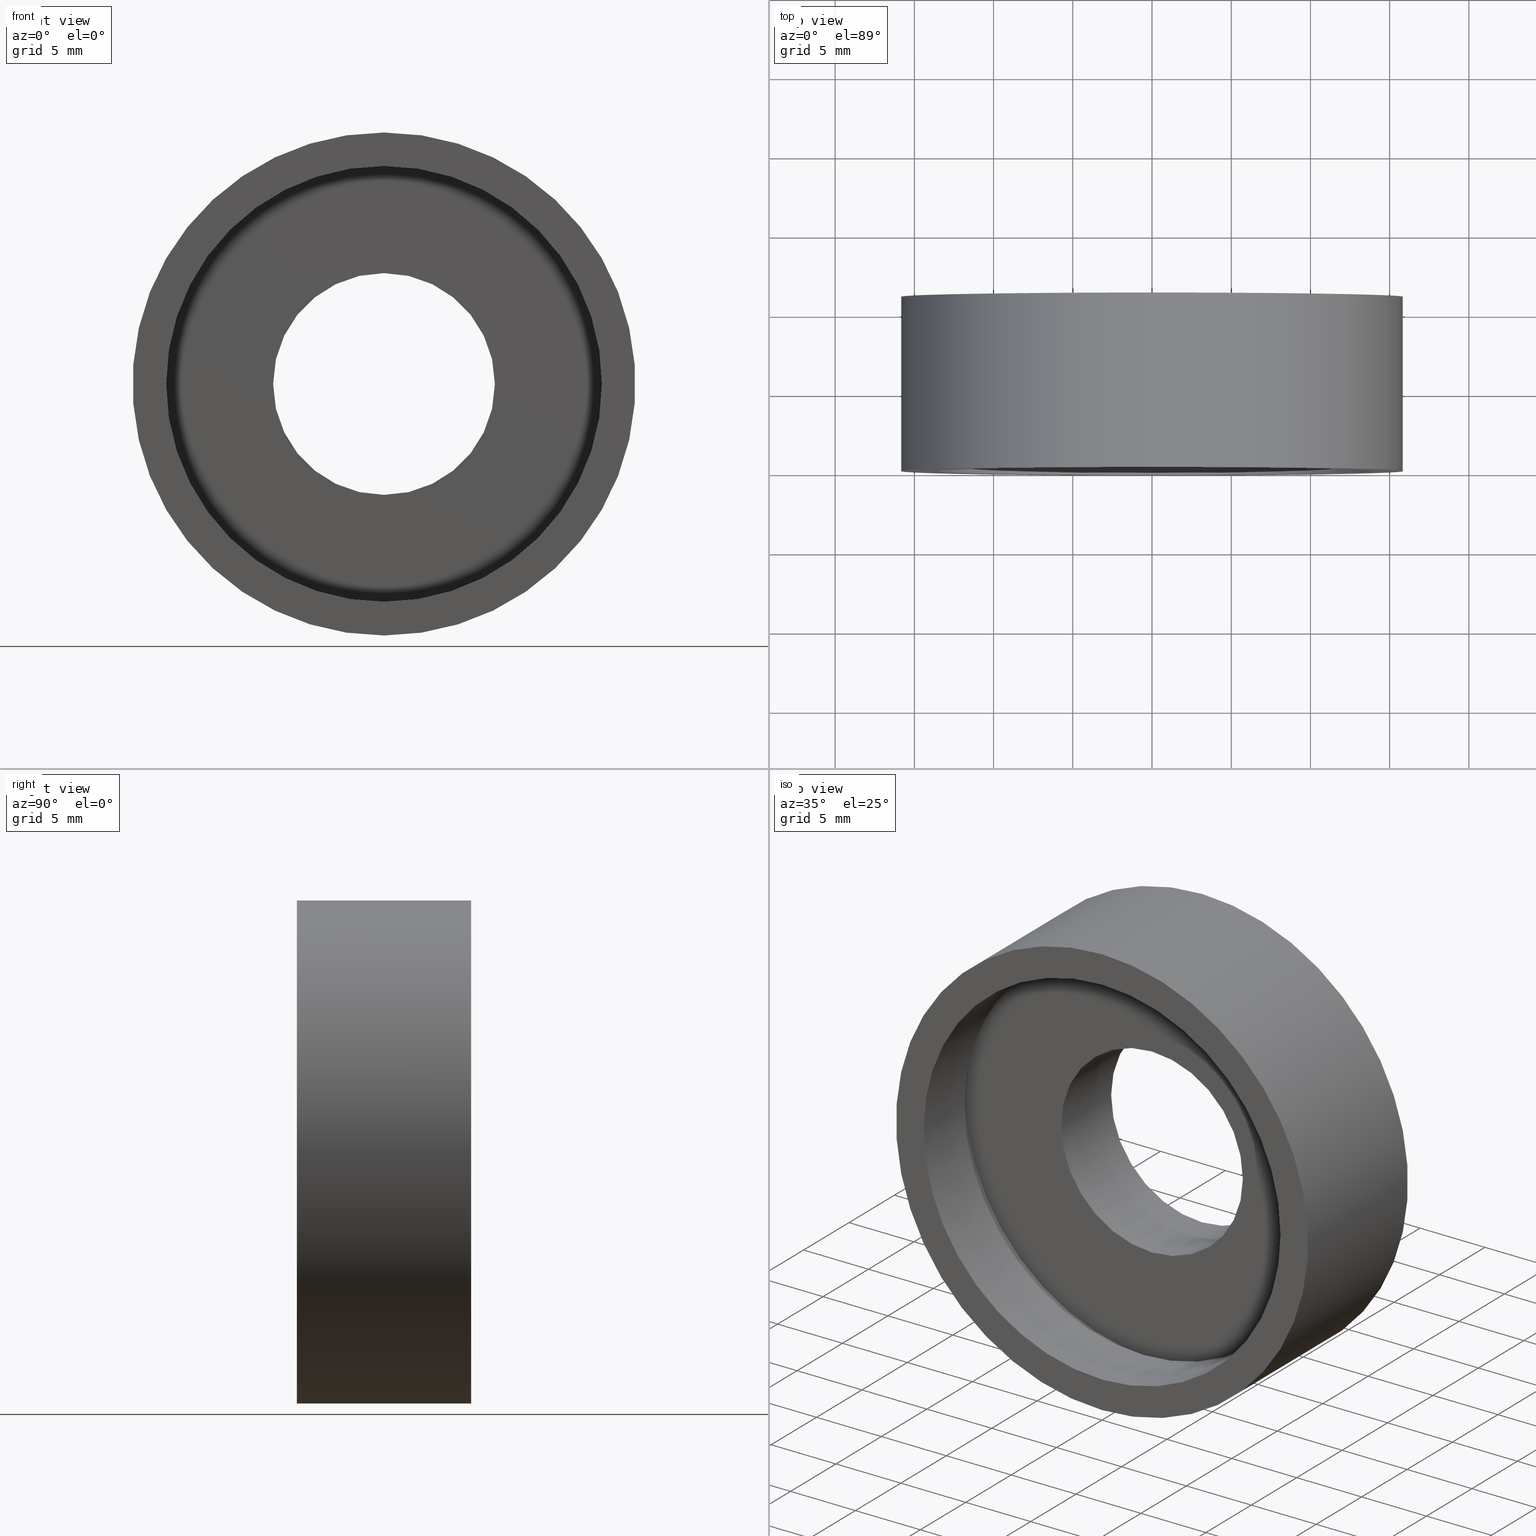
[diagram: canonical four-view strip — front | top / right | iso, engineering-drawing reading convention]
A machine part, canonical four-view strip (front | top / right | iso — engineering-drawing reading convention). The complete STEP part file that produces these views, byte-faithful:
ISO-10303-21;
HEADER;
FILE_DESCRIPTION (( 'STEP AP214' ),
    '1' );
FILE_NAME ('504073.STEP',
    '2019-10-09T07:57:28',
    ( 'user' ),
    ( '΢���й�' ),
    'SwSTEP 2.0',
    'SolidWorks 2016',
    '' );
FILE_SCHEMA (( 'AUTOMOTIVE_DESIGN' ));
ENDSEC;

DATA;
#1 = ADVANCED_BREP_SHAPE_REPRESENTATION ( '504073', ( #53, #227 ), #142 ) ;
#2 = EDGE_LOOP ( 'NONE', ( #32, #176, #52, #144 ) ) ;
#3 = VERTEX_POINT ( 'NONE', #223 ) ;
#4 = PRESENTATION_LAYER_ASSIGNMENT (  '', '', ( #158 ) ) ;
#5 = EDGE_LOOP ( 'NONE', ( #154, #112 ) ) ;
#6 = ORIENTED_EDGE ( 'NONE', *, *, #229, .T. ) ;
#7 = UNCERTAINTY_MEASURE_WITH_UNIT (LENGTH_MEASURE( 1.000000000000000100E-005 ), #228, 'distance_accuracy_value', 'NONE');
#8 = CARTESIAN_POINT ( 'NONE',  ( 0.0000000000000000000, 4.499999999999997300, 0.0000000000000000000 ) ) ;
#9 = PRESENTATION_LAYER_ASSIGNMENT (  '', '', ( #103 ) ) ;
#10 = SURFACE_STYLE_FILL_AREA ( #371 ) ;
#11 =( NAMED_UNIT ( * ) SI_UNIT ( $, .STERADIAN. ) SOLID_ANGLE_UNIT ( ) );
#12 = ORIENTED_EDGE ( 'NONE', *, *, #311, .T. ) ;
#13 = CIRCLE ( 'NONE', #319, 7.000000000000006200 ) ;
#14 = EDGE_CURVE ( 'NONE', #45, #85, #335, .T. ) ;
#15 = PRODUCT_DEFINITION_CONTEXT ( 'detailed design', #307, 'design' ) ;
#16 = CLOSED_SHELL ( 'NONE', ( #91, #170, #247, #369, #113, #390, #397, #352, #261, #312, #38, #159 ) ) ;
#17 = DIRECTION ( 'NONE',  ( 0.0000000000000000000, 0.0000000000000000000, 1.000000000000000000 ) ) ;
#18 = APPLICATION_CONTEXT ( 'automotive_design' ) ;
#19 = VERTEX_POINT ( 'NONE', #143 ) ;
#20 = CIRCLE ( 'NONE', #396, 13.75000000000000700 ) ;
#21 = ORIENTED_EDGE ( 'NONE', *, *, #245, .F. ) ;
#22 = CARTESIAN_POINT ( 'NONE',  ( 14.35000000000000500, 5.499999999999998200, 0.0000000000000000000 ) ) ;
#23 = PRODUCT_DEFINITION_SHAPE ( 'NONE', 'NONE',  #125 ) ;
#24 =( GEOMETRIC_REPRESENTATION_CONTEXT ( 3 ) GLOBAL_UNCERTAINTY_ASSIGNED_CONTEXT ( ( #388 ) ) GLOBAL_UNIT_ASSIGNED_CONTEXT ( ( #373, #285, #273 ) ) REPRESENTATION_CONTEXT ( 'NONE', 'WORKASPACE' ) );
#25 = VECTOR ( 'NONE', #190, 1000.000000000000000 ) ;
#26 = DIRECTION ( 'NONE',  ( 0.0000000000000000000, 0.0000000000000000000, 1.000000000000000000 ) ) ;
#27 = ORIENTED_EDGE ( 'NONE', *, *, #102, .T. ) ;
#28 = ORIENTED_EDGE ( 'NONE', *, *, #29, .F. ) ;
#29 = EDGE_CURVE ( 'NONE', #48, #165, #303, .T. ) ;
#30 = CARTESIAN_POINT ( 'NONE',  ( 1.683889348827611600E-015, 0.0000000000000000000, -13.75000000000000700 ) ) ;
#31 = PRESENTATION_STYLE_ASSIGNMENT (( #155 ) ) ;
#32 = ORIENTED_EDGE ( 'NONE', *, *, #304, .F. ) ;
#33 = CARTESIAN_POINT ( 'NONE',  ( 0.0000000000000000000, 5.499999999999998200, 0.0000000000000000000 ) ) ;
#34 = ORIENTED_EDGE ( 'NONE', *, *, #418, .F. ) ;
#35 = VERTEX_POINT ( 'NONE', #239 ) ;
#36 = EDGE_LOOP ( 'NONE', ( #248, #93, #419, #153 ) ) ;
#37 = MECHANICAL_DESIGN_GEOMETRIC_PRESENTATION_REPRESENTATION (  '', ( #234 ), #110 ) ;
#38 = ADVANCED_FACE ( 'NONE', ( #89, #162 ), #109, .F. ) ;
#39 = PRESENTATION_LAYER_ASSIGNMENT (  '', '', ( #234 ) ) ;
#40 =( NAMED_UNIT ( * ) SI_UNIT ( $, .STERADIAN. ) SOLID_ANGLE_UNIT ( ) );
#41 = EDGE_LOOP ( 'NONE', ( #184, #149, #301, #28 ) ) ;
#42 = STYLED_ITEM ( 'NONE', ( #314 ), #170 ) ;
#43 = DIRECTION ( 'NONE',  ( -0.0000000000000000000, 1.000000000000000000, -0.0000000000000000000 ) ) ;
#44 = DIRECTION ( 'NONE',  ( -0.0000000000000000000, 1.000000000000000000, 0.0000000000000000000 ) ) ;
#45 = VERTEX_POINT ( 'NONE', #292 ) ;
#46 = CARTESIAN_POINT ( 'NONE',  ( 0.0000000000000000000, 4.499999999999997300, 0.0000000000000000000 ) ) ;
#47 = ORIENTED_EDGE ( 'NONE', *, *, #157, .F. ) ;
#48 = VERTEX_POINT ( 'NONE', #97 ) ;
#49 = CARTESIAN_POINT ( 'NONE',  ( 0.0000000000000000000, 10.99999999999999600, 0.0000000000000000000 ) ) ;
#50 = CYLINDRICAL_SURFACE ( 'NONE', #361, 15.87500000000000400 ) ;
#51 = SURFACE_SIDE_STYLE ('',( #224 ) ) ;
#52 = ORIENTED_EDGE ( 'NONE', *, *, #29, .T. ) ;
#53 = MANIFOLD_SOLID_BREP ( '��ת1', #16 ) ;
#54 = PRODUCT ( '504073', '504073', '', ( #141 ) ) ;
#55 = SURFACE_STYLE_USAGE ( .BOTH. , #168 ) ;
#56 =( GEOMETRIC_REPRESENTATION_CONTEXT ( 3 ) GLOBAL_UNCERTAINTY_ASSIGNED_CONTEXT ( ( #7 ) ) GLOBAL_UNIT_ASSIGNED_CONTEXT ( ( #228, #411, #219 ) ) REPRESENTATION_CONTEXT ( 'NONE', 'WORKASPACE' ) );
#57 = AXIS2_PLACEMENT_3D ( 'NONE', #226, #95, #400 ) ;
#58 = EDGE_LOOP ( 'NONE', ( #134, #163, #403, #74 ) ) ;
#59 = ORIENTED_EDGE ( 'NONE', *, *, #377, .F. ) ;
#60 = ORIENTED_EDGE ( 'NONE', *, *, #316, .F. ) ;
#61 = LINE ( 'NONE', #64, #286 ) ;
#62 = EDGE_CURVE ( 'NONE', #370, #3, #115, .T. ) ;
#63 = DIRECTION ( 'NONE',  ( -0.0000000000000000000, 1.000000000000000000, -0.0000000000000000000 ) ) ;
#64 = CARTESIAN_POINT ( 'NONE',  ( 0.0000000000000000000, 60.02082041425541100, 15.87500000000000400 ) ) ;
#65 = FACE_OUTER_BOUND ( 'NONE', #2, .T. ) ;
#66 = AXIS2_PLACEMENT_3D ( 'NONE', #22, #44, #67 ) ;
#67 = DIRECTION ( 'NONE',  ( 0.0000000000000000000, 0.0000000000000000000, 1.000000000000000000 ) ) ;
#68 = PLANE ( 'NONE',  #66 ) ;
#69 = VERTEX_POINT ( 'NONE', #104 ) ;
#70 = FACE_OUTER_BOUND ( 'NONE', #288, .T. ) ;
#71 = SURFACE_SIDE_STYLE ('',( #82 ) ) ;
#72 = FACE_OUTER_BOUND ( 'NONE', #90, .T. ) ;
#73 = ORIENTED_EDGE ( 'NONE', *, *, #377, .T. ) ;
#74 = ORIENTED_EDGE ( 'NONE', *, *, #429, .F. ) ;
#75 = CARTESIAN_POINT ( 'NONE',  ( 1.757368156776452800E-015, 5.499999999999998200, -14.35000000000000500 ) ) ;
#76 = PRODUCT_DEFINITION_FORMATION_WITH_SPECIFIED_SOURCE ( '�κ�', '', #54, .NOT_KNOWN. ) ;
#77 = CARTESIAN_POINT ( 'NONE',  ( 0.0000000000000000000, 0.0000000000000000000, 0.0000000000000000000 ) ) ;
#78 = CARTESIAN_POINT ( 'NONE',  ( 8.572527594031480100E-016, 60.02082041425541100, -7.000000000000006200 ) ) ;
#79 =( LENGTH_UNIT ( ) NAMED_UNIT ( * ) SI_UNIT ( .MILLI., .METRE. ) );
#80 = EDGE_CURVE ( 'NONE', #165, #340, #119, .T. ) ;
#81 = ORIENTED_EDGE ( 'NONE', *, *, #188, .T. ) ;
#82 = SURFACE_STYLE_FILL_AREA ( #430 ) ;
#83 = EDGE_CURVE ( 'NONE', #349, #69, #217, .T. ) ;
#84 = DIRECTION ( 'NONE',  ( 0.0000000000000000000, 0.0000000000000000000, 1.000000000000000000 ) ) ;
#85 = VERTEX_POINT ( 'NONE', #75 ) ;
#86 = DIRECTION ( 'NONE',  ( -0.0000000000000000000, 1.000000000000000000, -0.0000000000000000000 ) ) ;
#87 = UNCERTAINTY_MEASURE_WITH_UNIT (LENGTH_MEASURE( 1.000000000000000100E-005 ), #264, 'distance_accuracy_value', 'NONE');
#88 = CARTESIAN_POINT ( 'NONE',  ( 1.683889348827611600E-015, 4.499999999999997300, -13.75000000000000700 ) ) ;
#89 = FACE_BOUND ( 'NONE', #295, .T. ) ;
#90 = EDGE_LOOP ( 'NONE', ( #60, #341, #387, #182 ) ) ;
#91 = ADVANCED_FACE ( 'NONE', ( #421 ), #50, .T. ) ;
#92 = AXIS2_PLACEMENT_3D ( 'NONE', #151, #122, #96 ) ;
#93 = ORIENTED_EDGE ( 'NONE', *, *, #316, .T. ) ;
#94 = EDGE_CURVE ( 'NONE', #340, #165, #365, .T. ) ;
#95 = DIRECTION ( 'NONE',  ( -0.0000000000000000000, 1.000000000000000000, -0.0000000000000000000 ) ) ;
#96 = DIRECTION ( 'NONE',  ( 0.0000000000000000000, -0.0000000000000000000, -1.000000000000000000 ) ) ;
#97 = CARTESIAN_POINT ( 'NONE',  ( 0.0000000000000000000, 5.499999999999998200, 7.000000000000006200 ) ) ;
#98 = DIRECTION ( 'NONE',  ( -0.0000000000000000000, 1.000000000000000000, -0.0000000000000000000 ) ) ;
#99 = DIRECTION ( 'NONE',  ( 1.000000000000000000, 0.0000000000000000000, 0.0000000000000000000 ) ) ;
#100 = CARTESIAN_POINT ( 'NONE',  ( 1.944126793646423600E-015, 0.0000000000000000000, -15.87500000000000400 ) ) ;
#101 = ORIENTED_EDGE ( 'NONE', *, *, #311, .F. ) ;
#102 = EDGE_CURVE ( 'NONE', #169, #48, #326, .T. ) ;
#103 = STYLED_ITEM ( 'NONE', ( #31 ), #390 ) ;
#104 = CARTESIAN_POINT ( 'NONE',  ( 0.0000000000000000000, 4.499999999999997300, 13.75000000000000700 ) ) ;
#105 = FACE_OUTER_BOUND ( 'NONE', #281, .T. ) ;
#106 = CYLINDRICAL_SURFACE ( 'NONE', #322, 13.75000000000000700 ) ;
#107 = MECHANICAL_DESIGN_GEOMETRIC_PRESENTATION_REPRESENTATION (  '', ( #412 ), #259 ) ;
#108 = LINE ( 'NONE', #121, #208 ) ;
#109 = PLANE ( 'NONE',  #92 ) ;
#110 =( GEOMETRIC_REPRESENTATION_CONTEXT ( 3 ) GLOBAL_UNCERTAINTY_ASSIGNED_CONTEXT ( ( #135 ) ) GLOBAL_UNIT_ASSIGNED_CONTEXT ( ( #362, #130, #282 ) ) REPRESENTATION_CONTEXT ( 'NONE', 'WORKASPACE' ) );
#111 = DIRECTION ( 'NONE',  ( 0.0000000000000000000, 0.0000000000000000000, 1.000000000000000000 ) ) ;
#112 = ORIENTED_EDGE ( 'NONE', *, *, #146, .T. ) ;
#113 = ADVANCED_FACE ( 'NONE', ( #199, #374 ), #379, .F. ) ;
#114 = EDGE_CURVE ( 'NONE', #69, #241, #183, .T. ) ;
#115 = CIRCLE ( 'NONE', #339, 15.87500000000000400 ) ;
#116 = COLOUR_RGB ( '',1.000000000000000000, 1.000000000000000000, 1.000000000000000000 ) ;
#117 = FILL_AREA_STYLE ('',( #321 ) ) ;
#118 = ORIENTED_EDGE ( 'NONE', *, *, #179, .F. ) ;
#119 = CIRCLE ( 'NONE', #198, 7.000000000000007100 ) ;
#120 = DIRECTION ( 'NONE',  ( 0.0000000000000000000, 0.0000000000000000000, 1.000000000000000000 ) ) ;
#121 = CARTESIAN_POINT ( 'NONE',  ( 0.0000000000000000000, 60.02082041425541100, 14.35000000000000700 ) ) ;
#122 = DIRECTION ( 'NONE',  ( 0.0000000000000000000, -1.000000000000000000, 0.0000000000000000000 ) ) ;
#123 = ORIENTED_EDGE ( 'NONE', *, *, #14, .F. ) ;
#124 = FACE_OUTER_BOUND ( 'NONE', #277, .T. ) ;
#125 = PRODUCT_DEFINITION ( 'δ֪', '', #76, #15 ) ;
#126 = AXIS2_PLACEMENT_3D ( 'NONE', #174, #299, #382 ) ;
#127 = ORIENTED_EDGE ( 'NONE', *, *, #80, .F. ) ;
#128 = CARTESIAN_POINT ( 'NONE',  ( 8.572527594031480100E-016, 5.499999999999998200, -7.000000000000006200 ) ) ;
#129 = CARTESIAN_POINT ( 'NONE',  ( 0.0000000000000000000, 10.99999999999999600, 0.0000000000000000000 ) ) ;
#130 =( NAMED_UNIT ( * ) PLANE_ANGLE_UNIT ( ) SI_UNIT ( $, .RADIAN. ) );
#131 =( GEOMETRIC_REPRESENTATION_CONTEXT ( 3 ) GLOBAL_UNCERTAINTY_ASSIGNED_CONTEXT ( ( #87 ) ) GLOBAL_UNIT_ASSIGNED_CONTEXT ( ( #264, #354, #40 ) ) REPRESENTATION_CONTEXT ( 'NONE', 'WORKASPACE' ) );
#132 = DIRECTION ( 'NONE',  ( -0.0000000000000000000, 1.000000000000000000, -0.0000000000000000000 ) ) ;
#133 =( LENGTH_UNIT ( ) NAMED_UNIT ( * ) SI_UNIT ( .MILLI., .METRE. ) );
#134 = ORIENTED_EDGE ( 'NONE', *, *, #245, .T. ) ;
#135 = UNCERTAINTY_MEASURE_WITH_UNIT (LENGTH_MEASURE( 1.000000000000000100E-005 ), #362, 'distance_accuracy_value', 'NONE');
#136 = EDGE_LOOP ( 'NONE', ( #212, #27 ) ) ;
#137 = DIRECTION ( 'NONE',  ( -0.0000000000000000000, 1.000000000000000000, -0.0000000000000000000 ) ) ;
#138 = PRESENTATION_LAYER_ASSIGNMENT (  '', '', ( #202 ) ) ;
#139 = CARTESIAN_POINT ( 'NONE',  ( 1.944126793646423600E-015, 60.02082041425541100, -15.87500000000000400 ) ) ;
#140 = SURFACE_STYLE_FILL_AREA ( #117 ) ;
#141 = PRODUCT_CONTEXT ( 'NONE', #18, 'mechanical' ) ;
#142 =( GEOMETRIC_REPRESENTATION_CONTEXT ( 3 ) GLOBAL_UNCERTAINTY_ASSIGNED_CONTEXT ( ( #324 ) ) GLOBAL_UNIT_ASSIGNED_CONTEXT ( ( #133, #367, #329 ) ) REPRESENTATION_CONTEXT ( 'NONE', 'WORKASPACE' ) );
#143 = CARTESIAN_POINT ( 'NONE',  ( 0.0000000000000000000, 0.0000000000000000000, 15.87500000000000400 ) ) ;
#144 = ORIENTED_EDGE ( 'NONE', *, *, #80, .T. ) ;
#145 = CYLINDRICAL_SURFACE ( 'NONE', #344, 7.000000000000006200 ) ;
#146 = EDGE_CURVE ( 'NONE', #221, #349, #20, .T. ) ;
#147 = CYLINDRICAL_SURFACE ( 'NONE', #298, 14.35000000000000700 ) ;
#148 = CARTESIAN_POINT ( 'NONE',  ( 0.0000000000000000000, 10.99999999999999600, 0.0000000000000000000 ) ) ;
#149 = ORIENTED_EDGE ( 'NONE', *, *, #304, .T. ) ;
#150 = DIRECTION ( 'NONE',  ( -0.0000000000000000000, 1.000000000000000000, -0.0000000000000000000 ) ) ;
#151 = CARTESIAN_POINT ( 'NONE',  ( 7.000000000000007100, 11.00000000000000000, 0.0000000000000000000 ) ) ;
#152 = PRESENTATION_STYLE_ASSIGNMENT (( #364 ) ) ;
#153 = ORIENTED_EDGE ( 'NONE', *, *, #83, .F. ) ;
#154 = ORIENTED_EDGE ( 'NONE', *, *, #389, .T. ) ;
#155 = SURFACE_STYLE_USAGE ( .BOTH. , #252 ) ;
#156 = DIRECTION ( 'NONE',  ( 0.0000000000000000000, 0.0000000000000000000, 1.000000000000000000 ) ) ;
#157 = EDGE_CURVE ( 'NONE', #35, #242, #173, .T. ) ;
#158 = STYLED_ITEM ( 'NONE', ( #268 ), #53 ) ;
#159 = ADVANCED_FACE ( 'NONE', ( #70 ), #172, .T. ) ;
#160 = MECHANICAL_DESIGN_GEOMETRIC_PRESENTATION_REPRESENTATION (  '', ( #103 ), #24 ) ;
#161 = ORIENTED_EDGE ( 'NONE', *, *, #94, .F. ) ;
#162 = FACE_OUTER_BOUND ( 'NONE', #258, .T. ) ;
#163 = ORIENTED_EDGE ( 'NONE', *, *, #418, .T. ) ;
#164 = EDGE_LOOP ( 'NONE', ( #216, #59, #6, #315 ) ) ;
#165 = VERTEX_POINT ( 'NONE', #260 ) ;
#166 = DIRECTION ( 'NONE',  ( 0.0000000000000000000, 0.0000000000000000000, 1.000000000000000000 ) ) ;
#167 = EDGE_LOOP ( 'NONE', ( #73, #222 ) ) ;
#168 = SURFACE_SIDE_STYLE ('',( #140 ) ) ;
#169 = VERTEX_POINT ( 'NONE', #128 ) ;
#170 = ADVANCED_FACE ( 'NONE', ( #402 ), #145, .F. ) ;
#171 = CARTESIAN_POINT ( 'NONE',  ( 13.75000000000000700, 4.499999999999999100, 0.0000000000000000000 ) ) ;
#172 = CYLINDRICAL_SURFACE ( 'NONE', #263, 15.87500000000000400 ) ;
#173 = CIRCLE ( 'NONE', #200, 14.35000000000000900 ) ;
#174 = CARTESIAN_POINT ( 'NONE',  ( 0.0000000000000000000, 0.0000000000000000000, 0.0000000000000000000 ) ) ;
#175 = SURFACE_SIDE_STYLE ('',( #293 ) ) ;
#176 = ORIENTED_EDGE ( 'NONE', *, *, #375, .F. ) ;
#177 = CARTESIAN_POINT ( 'NONE',  ( 0.0000000000000000000, 60.02082041425541100, 0.0000000000000000000 ) ) ;
#178 = DIRECTION ( 'NONE',  ( 0.0000000000000000000, 0.0000000000000000000, 1.000000000000000000 ) ) ;
#179 = EDGE_CURVE ( 'NONE', #85, #45, #331, .T. ) ;
#180 = DIRECTION ( 'NONE',  ( -0.0000000000000000000, 1.000000000000000000, -0.0000000000000000000 ) ) ;
#181 = AXIS2_PLACEMENT_3D ( 'NONE', #294, #132, #189 ) ;
#182 = ORIENTED_EDGE ( 'NONE', *, *, #114, .T. ) ;
#183 = CIRCLE ( 'NONE', #404, 13.75000000000000700 ) ;
#184 = ORIENTED_EDGE ( 'NONE', *, *, #102, .F. ) ;
#185 = CIRCLE ( 'NONE', #126, 13.75000000000000700 ) ;
#186 = SHAPE_DEFINITION_REPRESENTATION ( #23, #1 ) ;
#187 = FILL_AREA_STYLE_COLOUR ( '', #363 ) ;
#188 = EDGE_CURVE ( 'NONE', #35, #85, #271, .T. ) ;
#189 = DIRECTION ( 'NONE',  ( 0.0000000000000000000, 0.0000000000000000000, 1.000000000000000000 ) ) ;
#190 = DIRECTION ( 'NONE',  ( -0.0000000000000000000, 1.000000000000000000, -0.0000000000000000000 ) ) ;
#191 = DIRECTION ( 'NONE',  ( 0.0000000000000000000, 0.0000000000000000000, 1.000000000000000000 ) ) ;
#192 =( NAMED_UNIT ( * ) PLANE_ANGLE_UNIT ( ) SI_UNIT ( $, .RADIAN. ) );
#193 = UNCERTAINTY_MEASURE_WITH_UNIT (LENGTH_MEASURE( 1.000000000000000100E-005 ), #79, 'distance_accuracy_value', 'NONE');
#194 = FILL_AREA_STYLE ('',( #296 ) ) ;
#195 = DIRECTION ( 'NONE',  ( 0.0000000000000000000, -1.000000000000000000, 0.0000000000000000000 ) ) ;
#196 = AXIS2_PLACEMENT_3D ( 'NONE', #171, #195, #413 ) ;
#197 = DIRECTION ( 'NONE',  ( -0.0000000000000000000, 1.000000000000000000, -0.0000000000000000000 ) ) ;
#198 = AXIS2_PLACEMENT_3D ( 'NONE', #129, #275, #366 ) ;
#199 = FACE_OUTER_BOUND ( 'NONE', #203, .T. ) ;
#200 = AXIS2_PLACEMENT_3D ( 'NONE', #8, #320, #111 ) ;
#201 = DIRECTION ( 'NONE',  ( 0.0000000000000000000, 0.0000000000000000000, 1.000000000000000000 ) ) ;
#202 = STYLED_ITEM ( 'NONE', ( #152 ), #312 ) ;
#203 = EDGE_LOOP ( 'NONE', ( #21, #101 ) ) ;
#204 = DIRECTION ( 'NONE',  ( 0.0000000000000000000, 0.0000000000000000000, 1.000000000000000000 ) ) ;
#205 = AXIS2_PLACEMENT_3D ( 'NONE', #368, #358, #191 ) ;
#206 = DIRECTION ( 'NONE',  ( 0.0000000000000000000, 0.0000000000000000000, 1.000000000000000000 ) ) ;
#207 = EDGE_LOOP ( 'NONE', ( #432, #284 ) ) ;
#208 = VECTOR ( 'NONE', #353, 1000.000000000000000 ) ;
#209 = CARTESIAN_POINT ( 'NONE',  ( 0.0000000000000000000, 4.499999999999997300, 0.0000000000000000000 ) ) ;
#210 = CARTESIAN_POINT ( 'NONE',  ( 0.0000000000000000000, 10.99999999999999600, 0.0000000000000000000 ) ) ;
#211 = AXIS2_PLACEMENT_3D ( 'NONE', #148, #372, #178 ) ;
#212 = ORIENTED_EDGE ( 'NONE', *, *, #375, .T. ) ;
#213 = CARTESIAN_POINT ( 'NONE',  ( 1.757368156776452800E-015, 60.02082041425541100, -14.35000000000000700 ) ) ;
#214 = CARTESIAN_POINT ( 'NONE',  ( 0.0000000000000000000, 0.0000000000000000000, 0.0000000000000000000 ) ) ;
#215 = AXIS2_PLACEMENT_3D ( 'NONE', #384, #98, #204 ) ;
#216 = ORIENTED_EDGE ( 'NONE', *, *, #188, .F. ) ;
#217 = LINE ( 'NONE', #398, #434 ) ;
#218 = PLANE ( 'NONE',  #196 ) ;
#219 =( NAMED_UNIT ( * ) SI_UNIT ( $, .STERADIAN. ) SOLID_ANGLE_UNIT ( ) );
#220 = CARTESIAN_POINT ( 'NONE',  ( 0.0000000000000000000, 5.499999999999998200, 0.0000000000000000000 ) ) ;
#221 = VERTEX_POINT ( 'NONE', #30 ) ;
#222 = ORIENTED_EDGE ( 'NONE', *, *, #157, .T. ) ;
#223 = CARTESIAN_POINT ( 'NONE',  ( 0.0000000000000000000, 10.99999999999999600, 15.87500000000000400 ) ) ;
#224 = SURFACE_STYLE_FILL_AREA ( #414 ) ;
#225 = DIRECTION ( 'NONE',  ( -0.0000000000000000000, 1.000000000000000000, -0.0000000000000000000 ) ) ;
#226 = CARTESIAN_POINT ( 'NONE',  ( 0.0000000000000000000, 4.499999999999997300, 0.0000000000000000000 ) ) ;
#227 = AXIS2_PLACEMENT_3D ( 'NONE', #77, #240, #99 ) ;
#228 =( LENGTH_UNIT ( ) NAMED_UNIT ( * ) SI_UNIT ( .MILLI., .METRE. ) );
#229 = EDGE_CURVE ( 'NONE', #242, #45, #108, .T. ) ;
#230 = DIRECTION ( 'NONE',  ( -0.0000000000000000000, 1.000000000000000000, -0.0000000000000000000 ) ) ;
#231 = COLOUR_RGB ( '',1.000000000000000000, 1.000000000000000000, 1.000000000000000000 ) ;
#232 = DIRECTION ( 'NONE',  ( -0.0000000000000000000, 1.000000000000000000, -0.0000000000000000000 ) ) ;
#233 = FILL_AREA_STYLE ('',( #253 ) ) ;
#234 = STYLED_ITEM ( 'NONE', ( #256 ), #369 ) ;
#235 = ORIENTED_EDGE ( 'NONE', *, *, #325, .T. ) ;
#236 = DIRECTION ( 'NONE',  ( 0.0000000000000000000, 0.0000000000000000000, 1.000000000000000000 ) ) ;
#237 = VECTOR ( 'NONE', #431, 1000.000000000000000 ) ;
#238 = CARTESIAN_POINT ( 'NONE',  ( 0.0000000000000000000, 60.02082041425541100, 0.0000000000000000000 ) ) ;
#239 = CARTESIAN_POINT ( 'NONE',  ( 1.757368156776453200E-015, 4.499999999999997300, -14.35000000000001000 ) ) ;
#240 = DIRECTION ( 'NONE',  ( 0.0000000000000000000, 0.0000000000000000000, 1.000000000000000000 ) ) ;
#241 = VERTEX_POINT ( 'NONE', #88 ) ;
#242 = VERTEX_POINT ( 'NONE', #287 ) ;
#243 = ORIENTED_EDGE ( 'NONE', *, *, #62, .T. ) ;
#244 = DIRECTION ( 'NONE',  ( -0.0000000000000000000, 1.000000000000000000, -0.0000000000000000000 ) ) ;
#245 = EDGE_CURVE ( 'NONE', #19, #415, #250, .T. ) ;
#246 = FILL_AREA_STYLE_COLOUR ( '', #416 ) ;
#247 = ADVANCED_FACE ( 'NONE', ( #105 ), #147, .F. ) ;
#248 = ORIENTED_EDGE ( 'NONE', *, *, #146, .F. ) ;
#249 = DIRECTION ( 'NONE',  ( 0.0000000000000000000, 0.0000000000000000000, 1.000000000000000000 ) ) ;
#250 = CIRCLE ( 'NONE', #347, 15.87500000000000400 ) ;
#251 = AXIS2_PLACEMENT_3D ( 'NONE', #33, #317, #345 ) ;
#252 = SURFACE_SIDE_STYLE ('',( #10 ) ) ;
#253 = FILL_AREA_STYLE_COLOUR ( '', #231 ) ;
#254 = CARTESIAN_POINT ( 'NONE',  ( 1.944126793646423600E-015, 10.99999999999999600, -15.87500000000000400 ) ) ;
#255 = ORIENTED_EDGE ( 'NONE', *, *, #179, .T. ) ;
#256 = PRESENTATION_STYLE_ASSIGNMENT (( #55 ) ) ;
#257 = PRODUCT_RELATED_PRODUCT_CATEGORY ( 'part', '', ( #54 ) ) ;
#258 = EDGE_LOOP ( 'NONE', ( #235, #243 ) ) ;
#259 =( GEOMETRIC_REPRESENTATION_CONTEXT ( 3 ) GLOBAL_UNCERTAINTY_ASSIGNED_CONTEXT ( ( #266 ) ) GLOBAL_UNIT_ASSIGNED_CONTEXT ( ( #408, #192, #302 ) ) REPRESENTATION_CONTEXT ( 'NONE', 'WORKASPACE' ) );
#260 = CARTESIAN_POINT ( 'NONE',  ( 0.0000000000000000000, 10.99999999999999600, 7.000000000000007100 ) ) ;
#261 = ADVANCED_FACE ( 'NONE', ( #124, #279 ), #68, .F. ) ;
#262 = APPLICATION_PROTOCOL_DEFINITION ( 'draft international standard', 'automotive_design', 1998, #307 ) ;
#263 = AXIS2_PLACEMENT_3D ( 'NONE', #238, #399, #26 ) ;
#264 =( LENGTH_UNIT ( ) NAMED_UNIT ( * ) SI_UNIT ( .MILLI., .METRE. ) );
#265 = CIRCLE ( 'NONE', #378, 14.35000000000000900 ) ;
#266 = UNCERTAINTY_MEASURE_WITH_UNIT (LENGTH_MEASURE( 1.000000000000000100E-005 ), #408, 'distance_accuracy_value', 'NONE');
#267 = DIRECTION ( 'NONE',  ( 0.0000000000000000000, 0.0000000000000000000, 1.000000000000000000 ) ) ;
#268 = PRESENTATION_STYLE_ASSIGNMENT (( #305 ) ) ;
#269 = DIRECTION ( 'NONE',  ( 0.0000000000000000000, 0.0000000000000000000, 1.000000000000000000 ) ) ;
#270 = DIRECTION ( 'NONE',  ( -0.0000000000000000000, 1.000000000000000000, -0.0000000000000000000 ) ) ;
#271 = LINE ( 'NONE', #213, #336 ) ;
#272 = LINE ( 'NONE', #383, #308 ) ;
#273 =( NAMED_UNIT ( * ) SI_UNIT ( $, .STERADIAN. ) SOLID_ANGLE_UNIT ( ) );
#274 = PRESENTATION_STYLE_ASSIGNMENT (( #391 ) ) ;
#275 = DIRECTION ( 'NONE',  ( -0.0000000000000000000, 1.000000000000000000, -0.0000000000000000000 ) ) ;
#276 = SURFACE_STYLE_USAGE ( .BOTH. , #71 ) ;
#277 = EDGE_LOOP ( 'NONE', ( #123, #118 ) ) ;
#278 = APPLICATION_PROTOCOL_DEFINITION ( 'draft international standard', 'automotive_design', 1998, #18 ) ;
#279 = FACE_BOUND ( 'NONE', #136, .T. ) ;
#280 = MECHANICAL_DESIGN_GEOMETRIC_PRESENTATION_REPRESENTATION (  '', ( #158 ), #56 ) ;
#281 = EDGE_LOOP ( 'NONE', ( #47, #81, #255, #356 ) ) ;
#282 =( NAMED_UNIT ( * ) SI_UNIT ( $, .STERADIAN. ) SOLID_ANGLE_UNIT ( ) );
#283 = AXIS2_PLACEMENT_3D ( 'NONE', #328, #424, #166 ) ;
#284 = ORIENTED_EDGE ( 'NONE', *, *, #423, .F. ) ;
#285 =( NAMED_UNIT ( * ) PLANE_ANGLE_UNIT ( ) SI_UNIT ( $, .RADIAN. ) );
#286 = VECTOR ( 'NONE', #225, 1000.000000000000000 ) ;
#287 = CARTESIAN_POINT ( 'NONE',  ( 0.0000000000000000000, 4.499999999999997300, 14.35000000000000900 ) ) ;
#288 = EDGE_LOOP ( 'NONE', ( #34, #12, #348, #381 ) ) ;
#289 = LINE ( 'NONE', #78, #376 ) ;
#290 = AXIS2_PLACEMENT_3D ( 'NONE', #220, #306, #236 ) ;
#291 = CYLINDRICAL_SURFACE ( 'NONE', #395, 14.35000000000000700 ) ;
#292 = CARTESIAN_POINT ( 'NONE',  ( 0.0000000000000000000, 5.499999999999998200, 14.35000000000000500 ) ) ;
#293 = SURFACE_STYLE_FILL_AREA ( #233 ) ;
#294 = CARTESIAN_POINT ( 'NONE',  ( 0.0000000000000000000, 60.02082041425541100, 0.0000000000000000000 ) ) ;
#295 = EDGE_LOOP ( 'NONE', ( #127, #161 ) ) ;
#296 = FILL_AREA_STYLE_COLOUR ( '', #385 ) ;
#297 = CARTESIAN_POINT ( 'NONE',  ( 15.87500000000000400, -3.245314017740484500E-016, 0.0000000000000000000 ) ) ;
#298 = AXIS2_PLACEMENT_3D ( 'NONE', #177, #63, #201 ) ;
#299 = DIRECTION ( 'NONE',  ( -0.0000000000000000000, 1.000000000000000000, -0.0000000000000000000 ) ) ;
#300 = DIRECTION ( 'NONE',  ( -0.0000000000000000000, 1.000000000000000000, 0.0000000000000000000 ) ) ;
#301 = ORIENTED_EDGE ( 'NONE', *, *, #94, .T. ) ;
#302 =( NAMED_UNIT ( * ) SI_UNIT ( $, .STERADIAN. ) SOLID_ANGLE_UNIT ( ) );
#303 = LINE ( 'NONE', #393, #25 ) ;
#304 = EDGE_CURVE ( 'NONE', #169, #340, #289, .T. ) ;
#305 = SURFACE_STYLE_USAGE ( .BOTH. , #175 ) ;
#306 = DIRECTION ( 'NONE',  ( -0.0000000000000000000, 1.000000000000000000, -0.0000000000000000000 ) ) ;
#307 = APPLICATION_CONTEXT ( 'automotive_design' ) ;
#308 = VECTOR ( 'NONE', #270, 1000.000000000000000 ) ;
#309 = AXIS2_PLACEMENT_3D ( 'NONE', #210, #137, #120 ) ;
#310 = FILL_AREA_STYLE_COLOUR ( '', #116 ) ;
#311 = EDGE_CURVE ( 'NONE', #415, #19, #327, .T. ) ;
#312 = ADVANCED_FACE ( 'NONE', ( #65 ), #420, .F. ) ;
#313 = MECHANICAL_DESIGN_GEOMETRIC_PRESENTATION_REPRESENTATION (  '', ( #202 ), #131 ) ;
#314 = PRESENTATION_STYLE_ASSIGNMENT (( #276 ) ) ;
#315 = ORIENTED_EDGE ( 'NONE', *, *, #14, .T. ) ;
#316 = EDGE_CURVE ( 'NONE', #221, #241, #272, .T. ) ;
#317 = DIRECTION ( 'NONE',  ( -0.0000000000000000000, 1.000000000000000000, -0.0000000000000000000 ) ) ;
#318 = FACE_OUTER_BOUND ( 'NONE', #164, .T. ) ;
#319 = AXIS2_PLACEMENT_3D ( 'NONE', #392, #197, #17 ) ;
#320 = DIRECTION ( 'NONE',  ( -0.0000000000000000000, 1.000000000000000000, -0.0000000000000000000 ) ) ;
#321 = FILL_AREA_STYLE_COLOUR ( '', #330 ) ;
#322 = AXIS2_PLACEMENT_3D ( 'NONE', #359, #150, #406 ) ;
#323 = CARTESIAN_POINT ( 'NONE',  ( 0.0000000000000000000, 60.02082041425541100, 0.0000000000000000000 ) ) ;
#324 = UNCERTAINTY_MEASURE_WITH_UNIT (LENGTH_MEASURE( 1.000000000000000100E-005 ), #133, 'distance_accuracy_value', 'NONE');
#325 = EDGE_CURVE ( 'NONE', #3, #370, #427, .T. ) ;
#326 = CIRCLE ( 'NONE', #290, 7.000000000000006200 ) ;
#327 = CIRCLE ( 'NONE', #205, 15.87500000000000400 ) ;
#328 = CARTESIAN_POINT ( 'NONE',  ( 0.0000000000000000000, 60.02082041425541100, 0.0000000000000000000 ) ) ;
#329 =( NAMED_UNIT ( * ) SI_UNIT ( $, .STERADIAN. ) SOLID_ANGLE_UNIT ( ) );
#330 = COLOUR_RGB ( '',1.000000000000000000, 1.000000000000000000, 1.000000000000000000 ) ;
#331 = CIRCLE ( 'NONE', #215, 14.35000000000000500 ) ;
#332 = CARTESIAN_POINT ( 'NONE',  ( 0.0000000000000000000, 0.0000000000000000000, 13.75000000000000700 ) ) ;
#333 = DIRECTION ( 'NONE',  ( -0.0000000000000000000, 1.000000000000000000, -0.0000000000000000000 ) ) ;
#334 = DIRECTION ( 'NONE',  ( 0.0000000000000000000, 0.0000000000000000000, 1.000000000000000000 ) ) ;
#335 = CIRCLE ( 'NONE', #251, 14.35000000000000500 ) ;
#336 = VECTOR ( 'NONE', #86, 1000.000000000000000 ) ;
#337 =( NAMED_UNIT ( * ) PLANE_ANGLE_UNIT ( ) SI_UNIT ( $, .RADIAN. ) );
#338 = CARTESIAN_POINT ( 'NONE',  ( 0.0000000000000000000, 60.02082041425541100, 0.0000000000000000000 ) ) ;
#339 = AXIS2_PLACEMENT_3D ( 'NONE', #49, #43, #156 ) ;
#340 = VERTEX_POINT ( 'NONE', #410 ) ;
#341 = ORIENTED_EDGE ( 'NONE', *, *, #389, .F. ) ;
#342 = LINE ( 'NONE', #139, #237 ) ;
#343 = DIRECTION ( 'NONE',  ( -0.0000000000000000000, 1.000000000000000000, -0.0000000000000000000 ) ) ;
#344 = AXIS2_PLACEMENT_3D ( 'NONE', #405, #230, #206 ) ;
#345 = DIRECTION ( 'NONE',  ( 0.0000000000000000000, 0.0000000000000000000, 1.000000000000000000 ) ) ;
#346 = DIRECTION ( 'NONE',  ( -0.0000000000000000000, 1.000000000000000000, -0.0000000000000000000 ) ) ;
#347 = AXIS2_PLACEMENT_3D ( 'NONE', #422, #346, #249 ) ;
#348 = ORIENTED_EDGE ( 'NONE', *, *, #429, .T. ) ;
#349 = VERTEX_POINT ( 'NONE', #332 ) ;
#350 = DIRECTION ( 'NONE',  ( -0.0000000000000000000, 1.000000000000000000, -0.0000000000000000000 ) ) ;
#351 =( GEOMETRIC_REPRESENTATION_CONTEXT ( 3 ) GLOBAL_UNCERTAINTY_ASSIGNED_CONTEXT ( ( #193 ) ) GLOBAL_UNIT_ASSIGNED_CONTEXT ( ( #79, #337, #11 ) ) REPRESENTATION_CONTEXT ( 'NONE', 'WORKASPACE' ) );
#352 = ADVANCED_FACE ( 'NONE', ( #318 ), #291, .F. ) ;
#353 = DIRECTION ( 'NONE',  ( -0.0000000000000000000, 1.000000000000000000, -0.0000000000000000000 ) ) ;
#354 =( NAMED_UNIT ( * ) PLANE_ANGLE_UNIT ( ) SI_UNIT ( $, .RADIAN. ) );
#355 = SURFACE_STYLE_FILL_AREA ( #194 ) ;
#356 = ORIENTED_EDGE ( 'NONE', *, *, #229, .F. ) ;
#357 = MECHANICAL_DESIGN_GEOMETRIC_PRESENTATION_REPRESENTATION (  '', ( #42 ), #351 ) ;
#358 = DIRECTION ( 'NONE',  ( -0.0000000000000000000, 1.000000000000000000, -0.0000000000000000000 ) ) ;
#359 = CARTESIAN_POINT ( 'NONE',  ( 0.0000000000000000000, 60.02082041425541100, 0.0000000000000000000 ) ) ;
#360 = DIRECTION ( 'NONE',  ( 0.0000000000000000000, 0.0000000000000000000, 1.000000000000000000 ) ) ;
#361 = AXIS2_PLACEMENT_3D ( 'NONE', #338, #244, #267 ) ;
#362 =( LENGTH_UNIT ( ) NAMED_UNIT ( * ) SI_UNIT ( .MILLI., .METRE. ) );
#363 = COLOUR_RGB ( '',1.000000000000000000, 1.000000000000000000, 1.000000000000000000 ) ;
#364 = SURFACE_STYLE_USAGE ( .BOTH. , #433 ) ;
#365 = CIRCLE ( 'NONE', #211, 7.000000000000007100 ) ;
#366 = DIRECTION ( 'NONE',  ( 0.0000000000000000000, 0.0000000000000000000, 1.000000000000000000 ) ) ;
#367 =( NAMED_UNIT ( * ) PLANE_ANGLE_UNIT ( ) SI_UNIT ( $, .RADIAN. ) );
#368 = CARTESIAN_POINT ( 'NONE',  ( 0.0000000000000000000, 0.0000000000000000000, 0.0000000000000000000 ) ) ;
#369 = ADVANCED_FACE ( 'NONE', ( #407 ), #425, .F. ) ;
#370 = VERTEX_POINT ( 'NONE', #254 ) ;
#371 = FILL_AREA_STYLE ('',( #187 ) ) ;
#372 = DIRECTION ( 'NONE',  ( -0.0000000000000000000, 1.000000000000000000, -0.0000000000000000000 ) ) ;
#373 =( LENGTH_UNIT ( ) NAMED_UNIT ( * ) SI_UNIT ( .MILLI., .METRE. ) );
#374 = FACE_BOUND ( 'NONE', #5, .T. ) ;
#375 = EDGE_CURVE ( 'NONE', #48, #169, #13, .T. ) ;
#376 = VECTOR ( 'NONE', #350, 1000.000000000000000 ) ;
#377 = EDGE_CURVE ( 'NONE', #242, #35, #265, .T. ) ;
#378 = AXIS2_PLACEMENT_3D ( 'NONE', #209, #232, #269 ) ;
#379 = PLANE ( 'NONE',  #409 ) ;
#380 = FACE_BOUND ( 'NONE', #207, .T. ) ;
#381 = ORIENTED_EDGE ( 'NONE', *, *, #62, .F. ) ;
#382 = DIRECTION ( 'NONE',  ( 0.0000000000000000000, 0.0000000000000000000, 1.000000000000000000 ) ) ;
#383 = CARTESIAN_POINT ( 'NONE',  ( 1.683889348827611600E-015, 60.02082041425541100, -13.75000000000000700 ) ) ;
#384 = CARTESIAN_POINT ( 'NONE',  ( 0.0000000000000000000, 5.499999999999998200, 0.0000000000000000000 ) ) ;
#385 = COLOUR_RGB ( '',1.000000000000000000, 1.000000000000000000, 1.000000000000000000 ) ;
#386 = DIRECTION ( 'NONE',  ( 0.0000000000000000000, 0.0000000000000000000, 1.000000000000000000 ) ) ;
#387 = ORIENTED_EDGE ( 'NONE', *, *, #83, .T. ) ;
#388 = UNCERTAINTY_MEASURE_WITH_UNIT (LENGTH_MEASURE( 1.000000000000000100E-005 ), #373, 'distance_accuracy_value', 'NONE');
#389 = EDGE_CURVE ( 'NONE', #349, #221, #185, .T. ) ;
#390 = ADVANCED_FACE ( 'NONE', ( #72 ), #106, .F. ) ;
#391 = SURFACE_STYLE_USAGE ( .BOTH. , #51 ) ;
#392 = CARTESIAN_POINT ( 'NONE',  ( 0.0000000000000000000, 5.499999999999998200, 0.0000000000000000000 ) ) ;
#393 = CARTESIAN_POINT ( 'NONE',  ( 0.0000000000000000000, 60.02082041425541100, 7.000000000000006200 ) ) ;
#394 = PRESENTATION_LAYER_ASSIGNMENT (  '', '', ( #42 ) ) ;
#395 = AXIS2_PLACEMENT_3D ( 'NONE', #323, #333, #334 ) ;
#396 = AXIS2_PLACEMENT_3D ( 'NONE', #214, #180, #360 ) ;
#397 = ADVANCED_FACE ( 'NONE', ( #380, #426 ), #218, .F. ) ;
#398 = CARTESIAN_POINT ( 'NONE',  ( 0.0000000000000000000, 60.02082041425541100, 13.75000000000000700 ) ) ;
#399 = DIRECTION ( 'NONE',  ( -0.0000000000000000000, 1.000000000000000000, -0.0000000000000000000 ) ) ;
#400 = DIRECTION ( 'NONE',  ( 0.0000000000000000000, 0.0000000000000000000, 1.000000000000000000 ) ) ;
#401 = CIRCLE ( 'NONE', #57, 13.75000000000000700 ) ;
#402 = FACE_OUTER_BOUND ( 'NONE', #41, .T. ) ;
#403 = ORIENTED_EDGE ( 'NONE', *, *, #325, .F. ) ;
#404 = AXIS2_PLACEMENT_3D ( 'NONE', #46, #343, #84 ) ;
#405 = CARTESIAN_POINT ( 'NONE',  ( 0.0000000000000000000, 60.02082041425541100, 0.0000000000000000000 ) ) ;
#406 = DIRECTION ( 'NONE',  ( 0.0000000000000000000, 0.0000000000000000000, 1.000000000000000000 ) ) ;
#407 = FACE_OUTER_BOUND ( 'NONE', #36, .T. ) ;
#408 =( LENGTH_UNIT ( ) NAMED_UNIT ( * ) SI_UNIT ( .MILLI., .METRE. ) );
#409 = AXIS2_PLACEMENT_3D ( 'NONE', #297, #300, #386 ) ;
#410 = CARTESIAN_POINT ( 'NONE',  ( 8.572527594031482100E-016, 10.99999999999999600, -7.000000000000008000 ) ) ;
#411 =( NAMED_UNIT ( * ) PLANE_ANGLE_UNIT ( ) SI_UNIT ( $, .RADIAN. ) );
#412 = STYLED_ITEM ( 'NONE', ( #274 ), #1 ) ;
#413 = DIRECTION ( 'NONE',  ( 0.0000000000000000000, -0.0000000000000000000, -1.000000000000000000 ) ) ;
#414 = FILL_AREA_STYLE ('',( #246 ) ) ;
#415 = VERTEX_POINT ( 'NONE', #100 ) ;
#416 = COLOUR_RGB ( '',1.000000000000000000, 1.000000000000000000, 1.000000000000000000 ) ;
#417 = DIRECTION ( 'NONE',  ( -0.0000000000000000000, 1.000000000000000000, -0.0000000000000000000 ) ) ;
#418 = EDGE_CURVE ( 'NONE', #415, #370, #342, .T. ) ;
#419 = ORIENTED_EDGE ( 'NONE', *, *, #423, .T. ) ;
#420 = CYLINDRICAL_SURFACE ( 'NONE', #181, 7.000000000000006200 ) ;
#421 = FACE_OUTER_BOUND ( 'NONE', #58, .T. ) ;
#422 = CARTESIAN_POINT ( 'NONE',  ( 0.0000000000000000000, 0.0000000000000000000, 0.0000000000000000000 ) ) ;
#423 = EDGE_CURVE ( 'NONE', #241, #69, #401, .T. ) ;
#424 = DIRECTION ( 'NONE',  ( -0.0000000000000000000, 1.000000000000000000, -0.0000000000000000000 ) ) ;
#425 = CYLINDRICAL_SURFACE ( 'NONE', #283, 13.75000000000000700 ) ;
#426 = FACE_OUTER_BOUND ( 'NONE', #167, .T. ) ;
#427 = CIRCLE ( 'NONE', #309, 15.87500000000000400 ) ;
#428 = PRESENTATION_LAYER_ASSIGNMENT (  '', '', ( #412 ) ) ;
#429 = EDGE_CURVE ( 'NONE', #19, #3, #61, .T. ) ;
#430 = FILL_AREA_STYLE ('',( #310 ) ) ;
#431 = DIRECTION ( 'NONE',  ( -0.0000000000000000000, 1.000000000000000000, -0.0000000000000000000 ) ) ;
#432 = ORIENTED_EDGE ( 'NONE', *, *, #114, .F. ) ;
#433 = SURFACE_SIDE_STYLE ('',( #355 ) ) ;
#434 = VECTOR ( 'NONE', #417, 1000.000000000000000 ) ;
ENDSEC;
END-ISO-10303-21;
